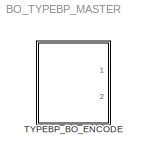
MODEL BO_TYPEBP_MASTER
KIND library
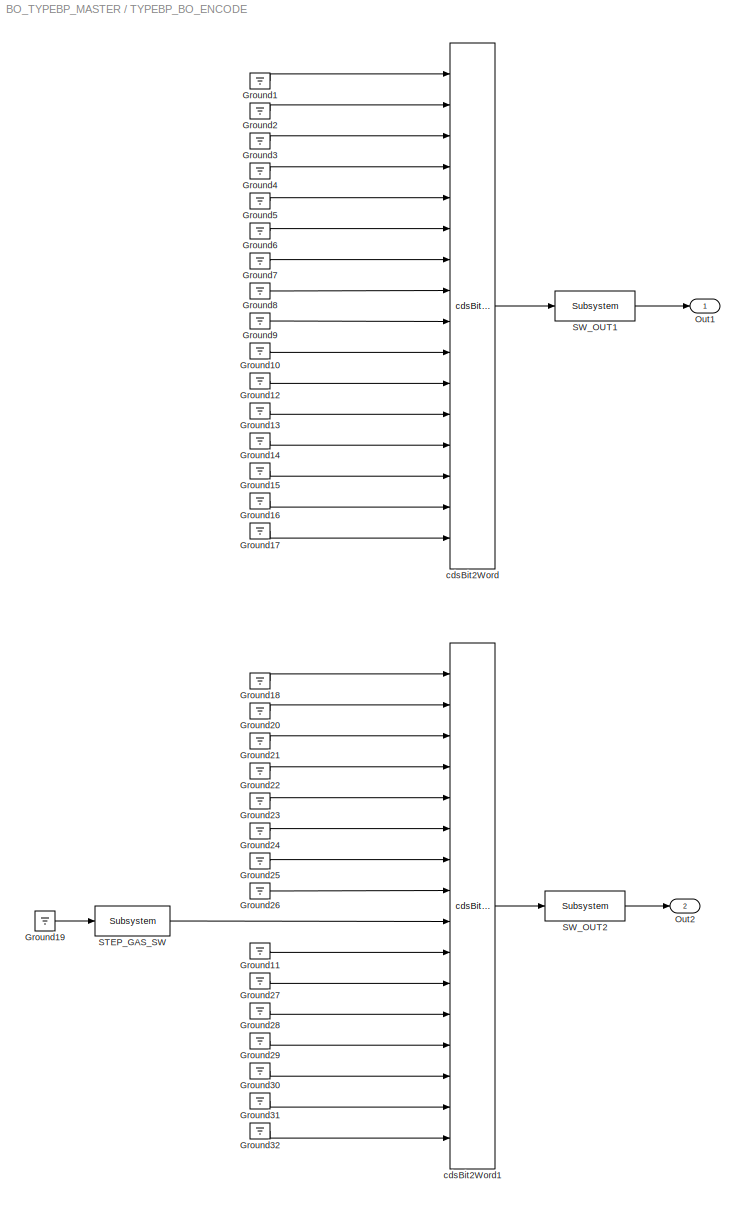
BLOCK [SubSystem] TYPEBP_BO_ENCODE
  Ports = [0, 2]
  RequestExecContextInheritance = off
  SID = 1
  Variant = off
BLOCK [Ground] TYPEBP_BO_ENCODE/Ground1
  SID = 2
BLOCK [Ground] TYPEBP_BO_ENCODE/Ground10
  SID = 3
BLOCK [Ground] TYPEBP_BO_ENCODE/Ground11
  SID = 4
BLOCK [Ground] TYPEBP_BO_ENCODE/Ground12
  SID = 5
BLOCK [Ground] TYPEBP_BO_ENCODE/Ground13
  SID = 6
BLOCK [Ground] TYPEBP_BO_ENCODE/Ground14
  SID = 7
BLOCK [Ground] TYPEBP_BO_ENCODE/Ground15
  SID = 8
BLOCK [Ground] TYPEBP_BO_ENCODE/Ground16
  SID = 9
BLOCK [Ground] TYPEBP_BO_ENCODE/Ground17
  SID = 10
BLOCK [Ground] TYPEBP_BO_ENCODE/Ground18
  SID = 11
BLOCK [Ground] TYPEBP_BO_ENCODE/Ground19
  SID = 12
BLOCK [Ground] TYPEBP_BO_ENCODE/Ground2
  SID = 13
BLOCK [Ground] TYPEBP_BO_ENCODE/Ground20
  SID = 14
BLOCK [Ground] TYPEBP_BO_ENCODE/Ground21
  SID = 15
BLOCK [Ground] TYPEBP_BO_ENCODE/Ground22
  SID = 16
BLOCK [Ground] TYPEBP_BO_ENCODE/Ground23
  SID = 17
BLOCK [Ground] TYPEBP_BO_ENCODE/Ground24
  SID = 18
BLOCK [Ground] TYPEBP_BO_ENCODE/Ground25
  SID = 19
BLOCK [Ground] TYPEBP_BO_ENCODE/Ground26
  SID = 20
BLOCK [Ground] TYPEBP_BO_ENCODE/Ground27
  SID = 21
BLOCK [Ground] TYPEBP_BO_ENCODE/Ground28
  SID = 22
BLOCK [Ground] TYPEBP_BO_ENCODE/Ground29
  SID = 23
BLOCK [Ground] TYPEBP_BO_ENCODE/Ground3
  SID = 24
BLOCK [Ground] TYPEBP_BO_ENCODE/Ground30
  SID = 25
BLOCK [Ground] TYPEBP_BO_ENCODE/Ground31
  SID = 26
BLOCK [Ground] TYPEBP_BO_ENCODE/Ground32
  SID = 27
BLOCK [Ground] TYPEBP_BO_ENCODE/Ground4
  SID = 28
BLOCK [Ground] TYPEBP_BO_ENCODE/Ground5
  SID = 29
BLOCK [Ground] TYPEBP_BO_ENCODE/Ground6
  SID = 30
BLOCK [Ground] TYPEBP_BO_ENCODE/Ground7
  SID = 31
BLOCK [Ground] TYPEBP_BO_ENCODE/Ground8
  SID = 32
BLOCK [Ground] TYPEBP_BO_ENCODE/Ground9
  SID = 33
BLOCK [Outport] TYPEBP_BO_ENCODE/Out1
  IconDisplay = Port number
  SID = 39
BLOCK [Outport] TYPEBP_BO_ENCODE/Out2
  IconDisplay = Port number
  Port = 2
  SID = 40
BLOCK [Reference] TYPEBP_BO_ENCODE/STEP_GAS_SW  REF=cdsEpicsBinIn/Subsystem
  AttributesFormatString = %<Tag>
  Description = Purpose:                                                                            \nCreate an EPICS binary (0 or 1) input channel to the FE realtime controls.          \n                                                                                    \nOperation:                                                                          \nOutputs value from an EPICS ai record. Value is binary i...<+252ch>
  Ports = [1, 1]
  SID = 34
  SourceBlock = cdsEpicsBinIn/Subsystem
  SourceType = SubSystem
  Tag = cdsEpicsBinIn
BLOCK [Reference] TYPEBP_BO_ENCODE/SW_OUT1  REF=cdsEpicsOut/Subsystem
  AttributesFormatString = %<Tag>
  Description = Purpose:                                          \nOutput a FE signal to an EPICS channel.           \n                                                  \nOperation:                                        \nTakes input value and passes it to EPICS record.  \n                                                  \nUsage:                                            \nName the part with the desired EPICS...<+14ch>
  Ports = [1, 1]
  SID = 35
  SourceBlock = cdsEpicsOut/Subsystem
  SourceType = SubSystem
  Tag = cdsEpicsOutput
BLOCK [Reference] TYPEBP_BO_ENCODE/SW_OUT2  REF=cdsEpicsOut/Subsystem
  AttributesFormatString = %<Tag>
  Description = Purpose:                                          \nOutput a FE signal to an EPICS channel.           \n                                                  \nOperation:                                        \nTakes input value and passes it to EPICS record.  \n                                                  \nUsage:                                            \nName the part with the desired EPICS...<+14ch>
  Ports = [1, 1]
  SID = 36
  SourceBlock = cdsEpicsOut/Subsystem
  SourceType = SubSystem
  Tag = cdsEpicsOutput
BLOCK [Reference] TYPEBP_BO_ENCODE/cdsBit2Word  REF=cdsBit2Word/cdsBit2Word
  AttributesFormatString = %<Tag>
  Description = Forms single 16 bit integer from 16 0/1 inputs.
  Ports = [16, 1]
  SID = 37
  SourceBlock = cdsBit2Word/cdsBit2Word
  SourceType = SubSystem
  Tag = cdsBit2Word
BLOCK [Reference] TYPEBP_BO_ENCODE/cdsBit2Word1  REF=cdsBit2Word/cdsBit2Word
  AttributesFormatString = %<Tag>
  Description = Forms single 16 bit integer from 16 0/1 inputs.
  Ports = [16, 1]
  SID = 38
  SourceBlock = cdsBit2Word/cdsBit2Word
  SourceType = SubSystem
  Tag = cdsBit2Word
LINE TYPEBP_BO_ENCODE/Ground10:1 -> TYPEBP_BO_ENCODE/cdsBit2Word:10
LINE TYPEBP_BO_ENCODE/Ground11:1 -> TYPEBP_BO_ENCODE/cdsBit2Word1:10
LINE TYPEBP_BO_ENCODE/Ground12:1 -> TYPEBP_BO_ENCODE/cdsBit2Word:11
LINE TYPEBP_BO_ENCODE/Ground13:1 -> TYPEBP_BO_ENCODE/cdsBit2Word:12
LINE TYPEBP_BO_ENCODE/Ground14:1 -> TYPEBP_BO_ENCODE/cdsBit2Word:13
LINE TYPEBP_BO_ENCODE/Ground15:1 -> TYPEBP_BO_ENCODE/cdsBit2Word:14
LINE TYPEBP_BO_ENCODE/Ground16:1 -> TYPEBP_BO_ENCODE/cdsBit2Word:15
LINE TYPEBP_BO_ENCODE/Ground17:1 -> TYPEBP_BO_ENCODE/cdsBit2Word:16
LINE TYPEBP_BO_ENCODE/Ground18:1 -> TYPEBP_BO_ENCODE/cdsBit2Word1:1
LINE TYPEBP_BO_ENCODE/Ground19:1 -> TYPEBP_BO_ENCODE/STEP_GAS_SW:1
LINE TYPEBP_BO_ENCODE/Ground1:1 -> TYPEBP_BO_ENCODE/cdsBit2Word:1
LINE TYPEBP_BO_ENCODE/Ground20:1 -> TYPEBP_BO_ENCODE/cdsBit2Word1:2
LINE TYPEBP_BO_ENCODE/Ground21:1 -> TYPEBP_BO_ENCODE/cdsBit2Word1:3
LINE TYPEBP_BO_ENCODE/Ground22:1 -> TYPEBP_BO_ENCODE/cdsBit2Word1:4
LINE TYPEBP_BO_ENCODE/Ground23:1 -> TYPEBP_BO_ENCODE/cdsBit2Word1:5
LINE TYPEBP_BO_ENCODE/Ground24:1 -> TYPEBP_BO_ENCODE/cdsBit2Word1:6
LINE TYPEBP_BO_ENCODE/Ground25:1 -> TYPEBP_BO_ENCODE/cdsBit2Word1:7
LINE TYPEBP_BO_ENCODE/Ground26:1 -> TYPEBP_BO_ENCODE/cdsBit2Word1:8
LINE TYPEBP_BO_ENCODE/Ground27:1 -> TYPEBP_BO_ENCODE/cdsBit2Word1:11
LINE TYPEBP_BO_ENCODE/Ground28:1 -> TYPEBP_BO_ENCODE/cdsBit2Word1:12
LINE TYPEBP_BO_ENCODE/Ground29:1 -> TYPEBP_BO_ENCODE/cdsBit2Word1:13
LINE TYPEBP_BO_ENCODE/Ground2:1 -> TYPEBP_BO_ENCODE/cdsBit2Word:2
LINE TYPEBP_BO_ENCODE/Ground30:1 -> TYPEBP_BO_ENCODE/cdsBit2Word1:14
LINE TYPEBP_BO_ENCODE/Ground31:1 -> TYPEBP_BO_ENCODE/cdsBit2Word1:15
LINE TYPEBP_BO_ENCODE/Ground32:1 -> TYPEBP_BO_ENCODE/cdsBit2Word1:16
LINE TYPEBP_BO_ENCODE/Ground3:1 -> TYPEBP_BO_ENCODE/cdsBit2Word:3
LINE TYPEBP_BO_ENCODE/Ground4:1 -> TYPEBP_BO_ENCODE/cdsBit2Word:4
LINE TYPEBP_BO_ENCODE/Ground5:1 -> TYPEBP_BO_ENCODE/cdsBit2Word:5
LINE TYPEBP_BO_ENCODE/Ground6:1 -> TYPEBP_BO_ENCODE/cdsBit2Word:6
LINE TYPEBP_BO_ENCODE/Ground7:1 -> TYPEBP_BO_ENCODE/cdsBit2Word:7
LINE TYPEBP_BO_ENCODE/Ground8:1 -> TYPEBP_BO_ENCODE/cdsBit2Word:8
LINE TYPEBP_BO_ENCODE/Ground9:1 -> TYPEBP_BO_ENCODE/cdsBit2Word:9
LINE TYPEBP_BO_ENCODE/STEP_GAS_SW:1 -> TYPEBP_BO_ENCODE/cdsBit2Word1:9
LINE TYPEBP_BO_ENCODE/SW_OUT1:1 -> TYPEBP_BO_ENCODE/Out1:1
LINE TYPEBP_BO_ENCODE/SW_OUT2:1 -> TYPEBP_BO_ENCODE/Out2:1
LINE TYPEBP_BO_ENCODE/cdsBit2Word1:1 -> TYPEBP_BO_ENCODE/SW_OUT2:1
LINE TYPEBP_BO_ENCODE/cdsBit2Word:1 -> TYPEBP_BO_ENCODE/SW_OUT1:1
